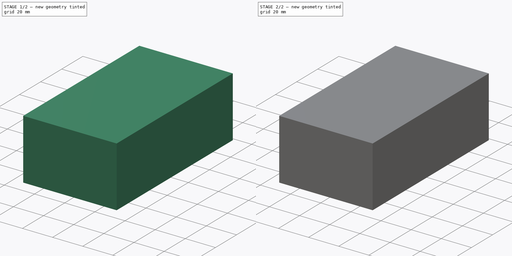
[diagram: build sequence overview — one tinted view per stage of 2, left to right]
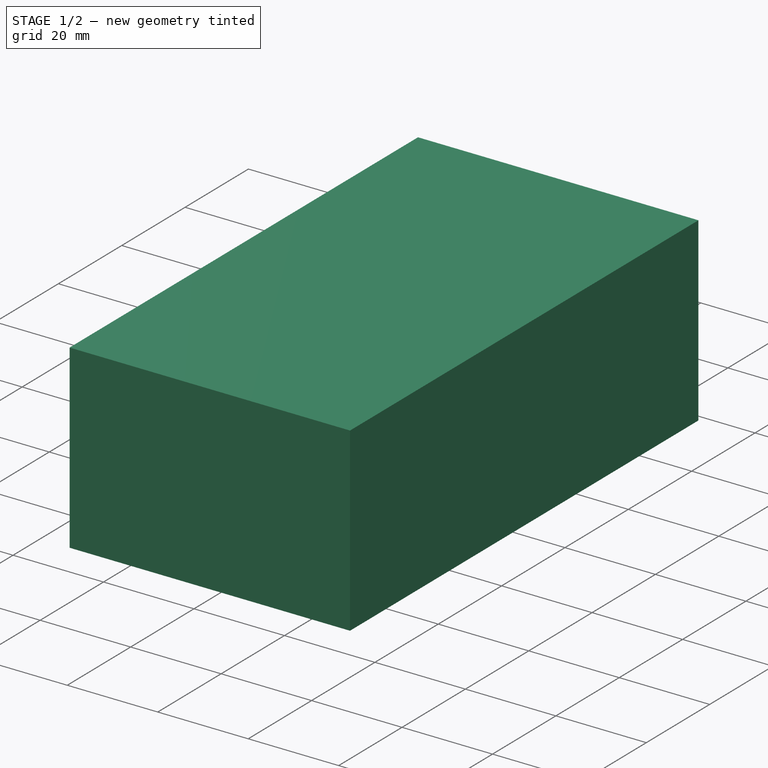
[diagram: stage 1 of 2 — iso view after this stage's code; geometry added in this stage tinted green]
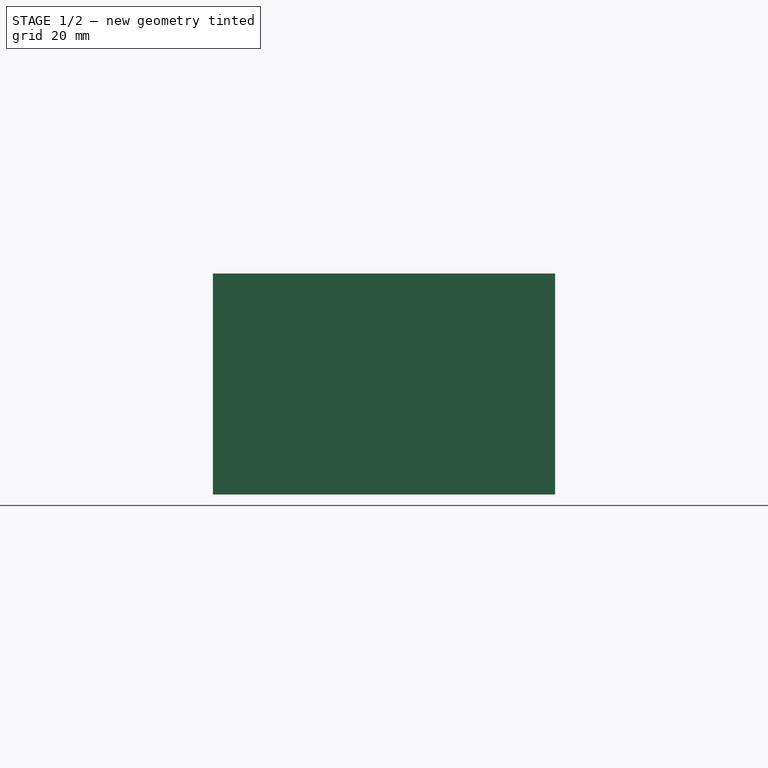
[diagram: stage 1 of 2 — front view after this stage's code; geometry added in this stage tinted green]
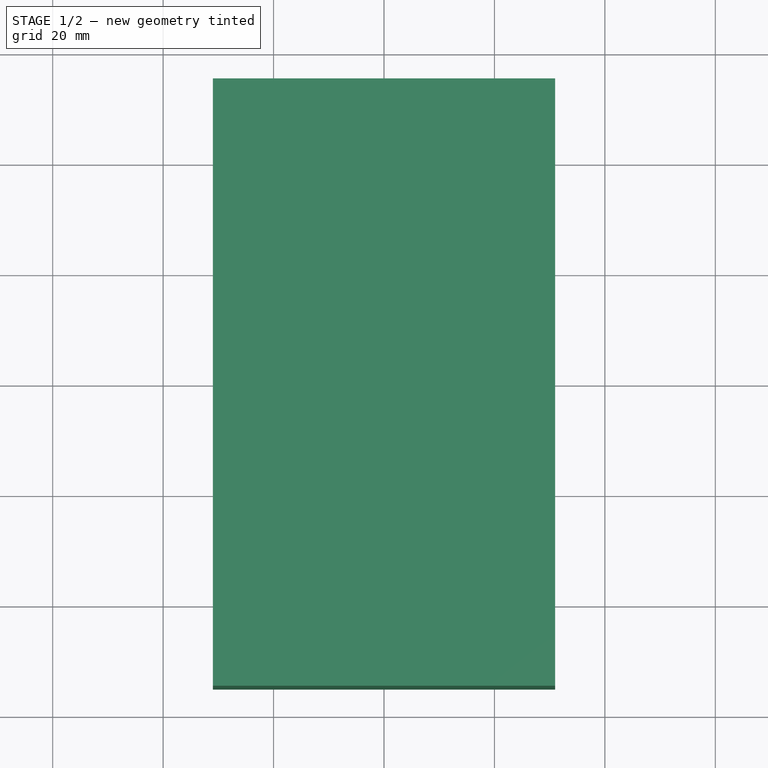
[diagram: stage 1 of 2 — top view after this stage's code; geometry added in this stage tinted green]
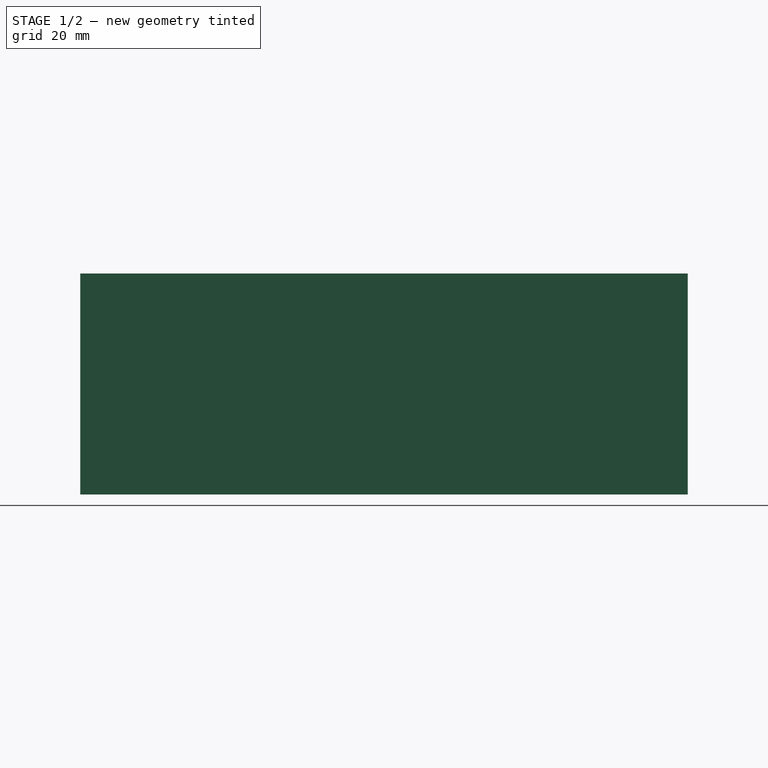
[diagram: stage 1 of 2 — right view after this stage's code; geometry added in this stage tinted green]
FCSTD DOCUMENT  (FreeCAD 0.16R6712 (Git))
Label: caja_para_18650
License: All rights reserved
LicenseURL: http://en.wikipedia.org/wiki/All_rights_reserved
objects: Sketcher::SketchObject×1, PartDesign::Pad×1, PartDesign::Fillet×1, Part::Box×1
note: 5 computed .brp shape members not serialized (recipe doc carries the construction recipe); baked Part::Feature solids carry a one-line shape summary decoded from their .brp

FEATURE [Sketcher::SketchObject] Sketch
  Placement = pos=(0,0,0) rot=(-1,0,0;4.71239rad)
  sketch-geometry (14):
    g0: ArcOfCircle CenterX=-19 CenterY=12 CenterZ=0 NormalX=0 NormalY=0 NormalZ=1 Radius=9.5 StartAngle=1.61682 EndAngle=5.71356
    g1: ArcOfCircle CenterX=0 CenterY=12 CenterZ=0 NormalX=0 NormalY=0 NormalZ=1 Radius=9.5 StartAngle=3.71121 EndAngle=5.71356
    g2: ArcOfCircle CenterX=19 CenterY=12 CenterZ=0 NormalX=0 NormalY=0 NormalZ=1 Radius=9.5 StartAngle=3.71121 EndAngle=7.80796
    g3: LineSegment [constr] StartX=-19 StartY=12 StartZ=0 EndX=0 EndY=12 EndZ=0
    g4: LineSegment [constr] StartX=0 StartY=12 StartZ=0 EndX=19 EndY=12 EndZ=0
    g5: LineSegment StartX=8 StartY=6.87652 StartZ=0 EndX=11 EndY=6.87652 EndZ=0
    g6: LineSegment StartX=-11 StartY=6.87652 StartZ=0 EndX=-8 EndY=6.87652 EndZ=0
    g7: ArcOfCircle CenterX=-9.5 CenterY=28.4545 CenterZ=0 NormalX=0 NormalY=0 NormalZ=1 Radius=9.5 StartAngle=0.569621 EndAngle=3.61917
    g8: ArcOfCircle CenterX=9.5 CenterY=28.4545 CenterZ=0 NormalX=0 NormalY=0 NormalZ=1 Radius=9.5 StartAngle=5.80561 EndAngle=8.85516
    g9: LineSegment StartX=-19.4371 StartY=21.4899 StartZ=0 EndX=-17.9371 EndY=24.088 EndZ=0
    g10: LineSegment StartX=19.4371 StartY=21.4899 StartZ=0 EndX=17.9371 EndY=24.088 EndZ=0
    g11: LineSegment StartX=-1.5 StartY=33.578 StartZ=0 EndX=1.5 EndY=33.578 EndZ=0
    g12: LineSegment [constr] StartX=-19 StartY=12 StartZ=0 EndX=-9.5 EndY=28.4545 EndZ=0
    g13: LineSegment [constr] StartX=9.5 StartY=28.4545 StartZ=0 EndX=19 EndY=12 EndZ=0
  constraints (43):
    c: Coincident(g3,g0)
    c: Horizontal(g3)
    c: Coincident(g4,g2)
    c: Horizontal(g4)
    c: Equal(g3,g4)
    c: DistanceX(g3,g3) = 19
    c: Radius(g0) = 9.5
    c: Equal(g0,g2)
    c: Equal(g0,g1)
    c: Coincident(g5,g1)
    c: Coincident(g5,g2)
    c: Horizontal(g5)
    c: Coincident(g6,g0)
    c: Coincident(g6,g1)
    c: Horizontal(g6)
    c: Equal(g6,g5)
    c: DistanceX(g6,g6) = 3
    c: Coincident(g4,g3)
    c: Coincident(g3,g1)
    c: PointOnObject(g1,g-2)
    c: DistanceY(g-1,g1) = 12
    c: Distance(g8,g2) = 19
    c: Distance(g8,g1) = 19
    c: Distance(g7,g1) = 19
    c: Distance(g7,g0) = 19
    c: Equal(g7,g8)
    c: Equal(g8,g2)
    c: Coincident(g9,g0)
    c: Coincident(g9,g7)
    c: Coincident(g10,g2)
    c: Coincident(g10,g8)
    c: Coincident(g11,g7)
    c: Coincident(g11,g8)
    c: Horizontal(g11)
    c: Equal(g6,g11)
    c: Equal(g11,g9)
    c: Equal(g9,g10)
    c: Coincident(g12,g0)
    c: Coincident(g12,g7)
    c: Coincident(g13,g8)
    c: Coincident(g13,g2)
    c: Parallel(g9,g12)
    c: Parallel(g10,g13)
FEATURE [PartDesign::Pad] Pad
  Length = 65
  Length2 = 100
  Midplane = true
  Placement = pos=(0,0,0) rot=(-1,0,0;4.71239rad)
  Sketch = -> Sketch
  Type = 0
FEATURE [Part::Box] Box  label="Cubo"
  Height = 40
  Length = 62
  Placement = pos=(-31,-35,0) rot=(0,0,1;0rad)
  Width = 110
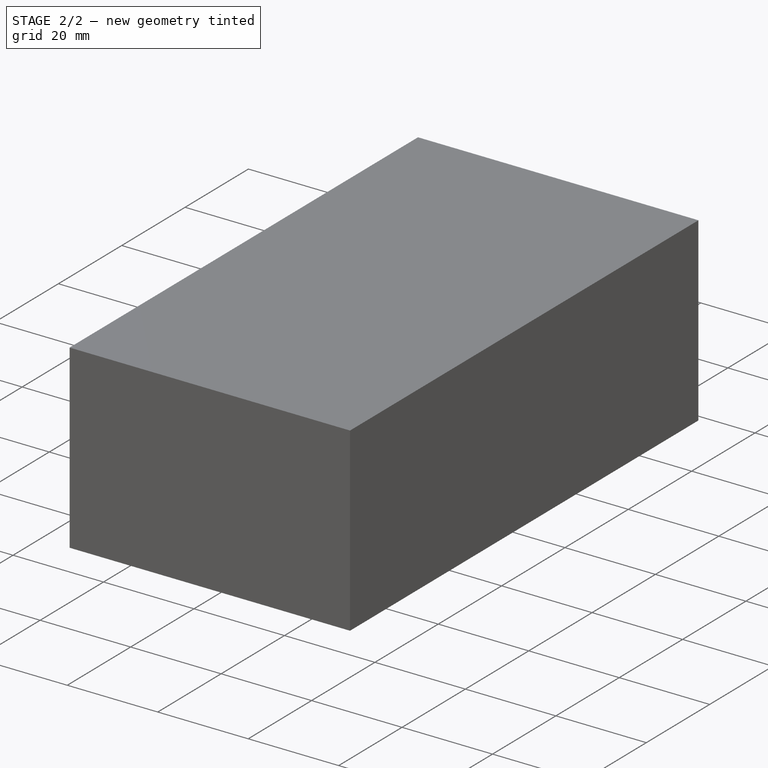
[diagram: stage 2 of 2 — iso view after this stage's code; geometry added in this stage tinted green]
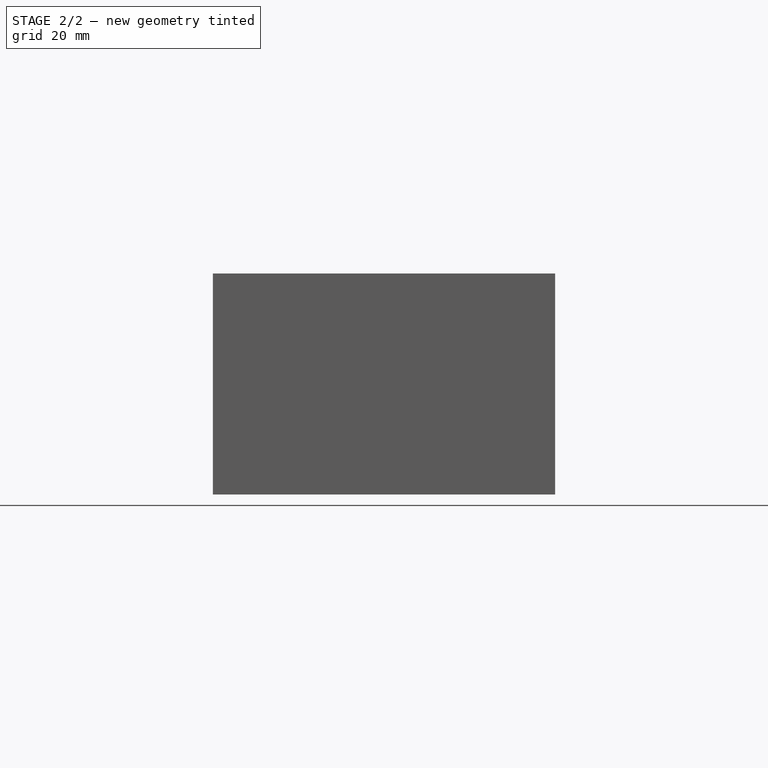
[diagram: stage 2 of 2 — front view after this stage's code; geometry added in this stage tinted green]
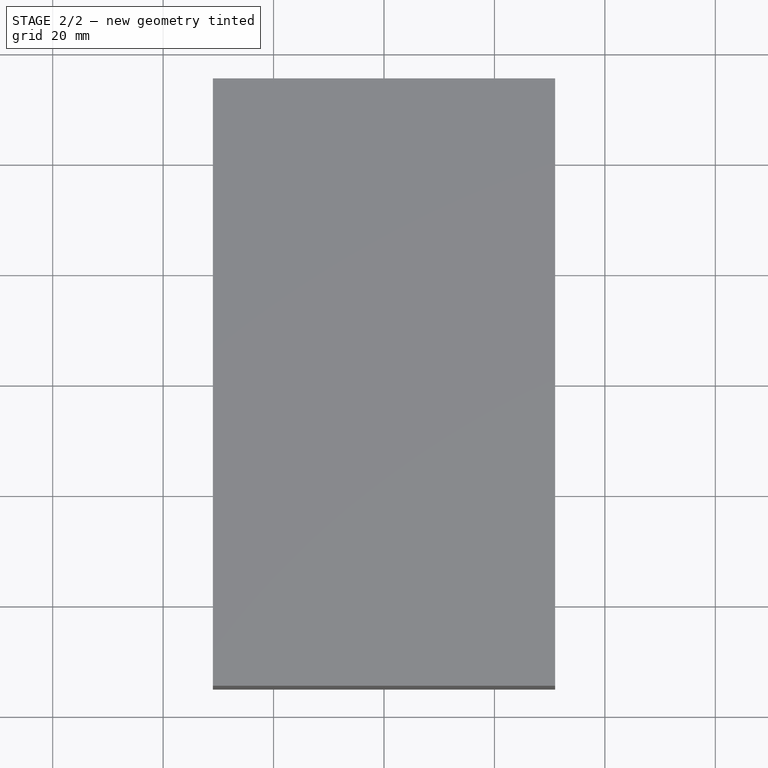
[diagram: stage 2 of 2 — top view after this stage's code; geometry added in this stage tinted green]
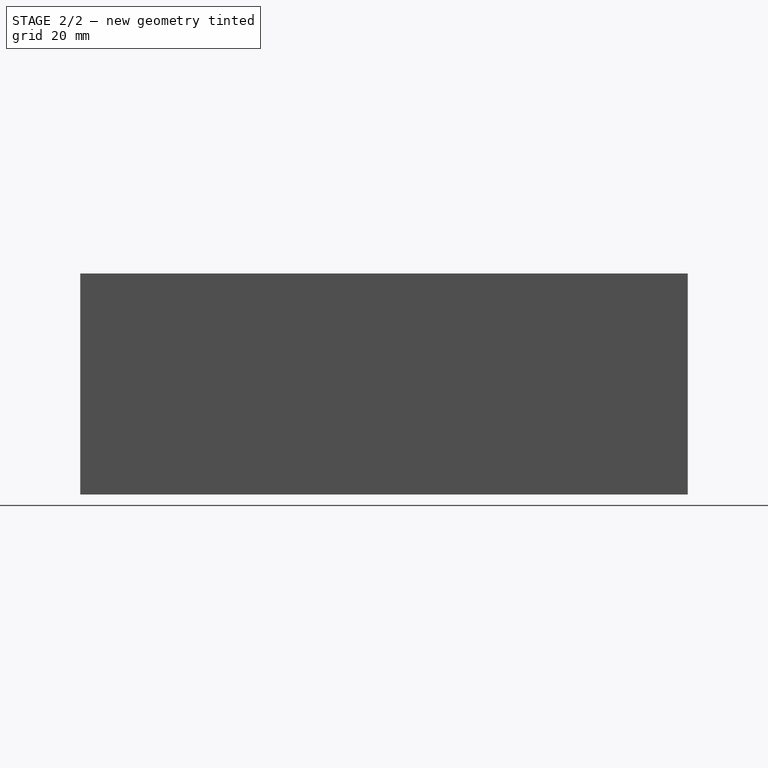
[diagram: stage 2 of 2 — right view after this stage's code; geometry added in this stage tinted green]
FEATURE [PartDesign::Fillet] Fillet
  Base = -> Pad [Edge4,Edge7,Edge10,Edge13,Edge16,Edge19,Edge22,Edge25,Edge28,Edge30,Edge3,Edge6,Edge9,Edge12,Edge15,Edge18,Edge21,Edge24,Edge27,Edge29]
  Placement = pos=(0,0,0) rot=(-1,0,0;4.71239rad)
  Radius = 1
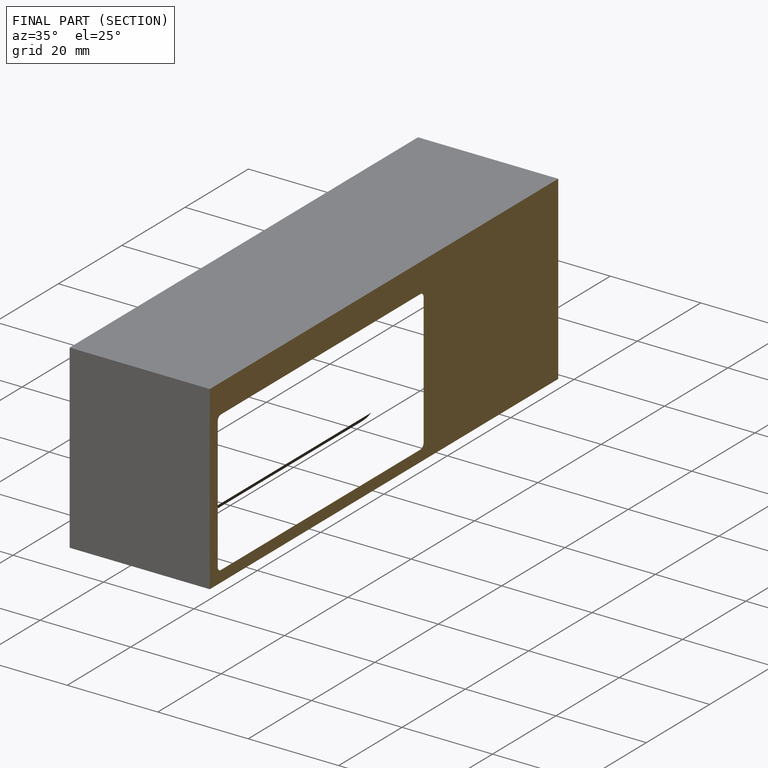
[diagram: finished part — half-section view (interior)]
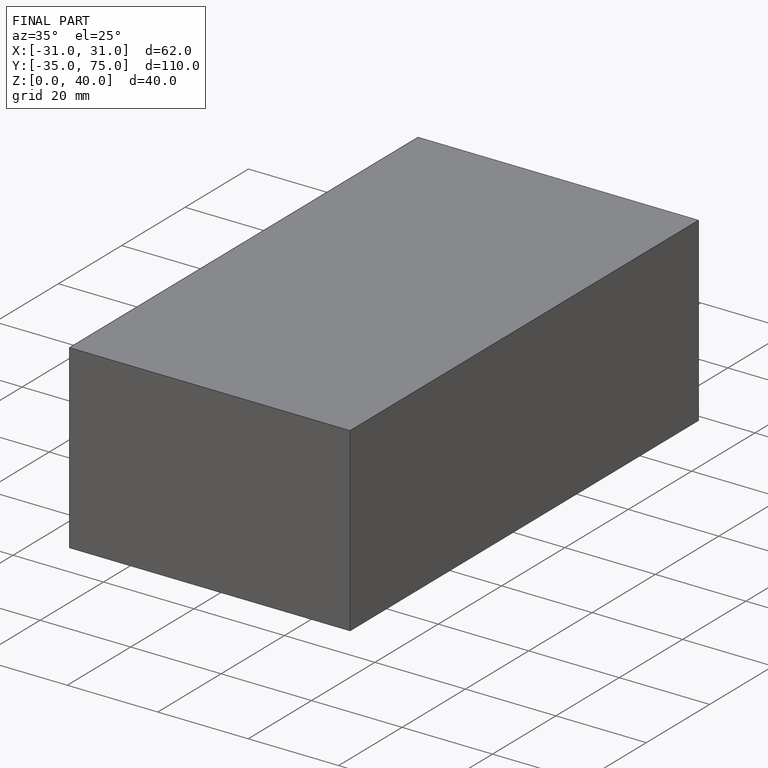
[diagram: finished part — iso view with bounding-box wireframe]
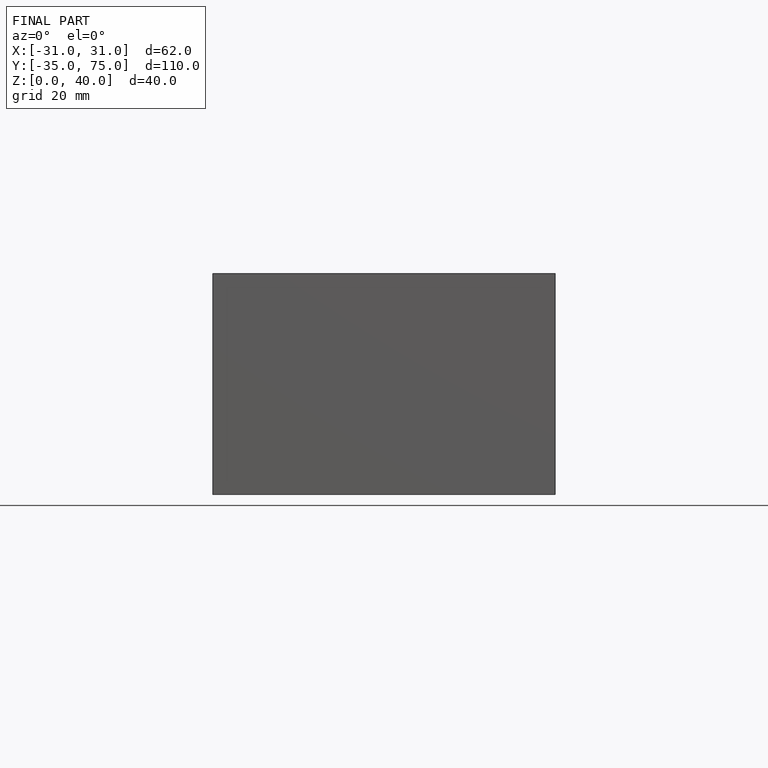
[diagram: finished part — front view with bounding-box wireframe]
